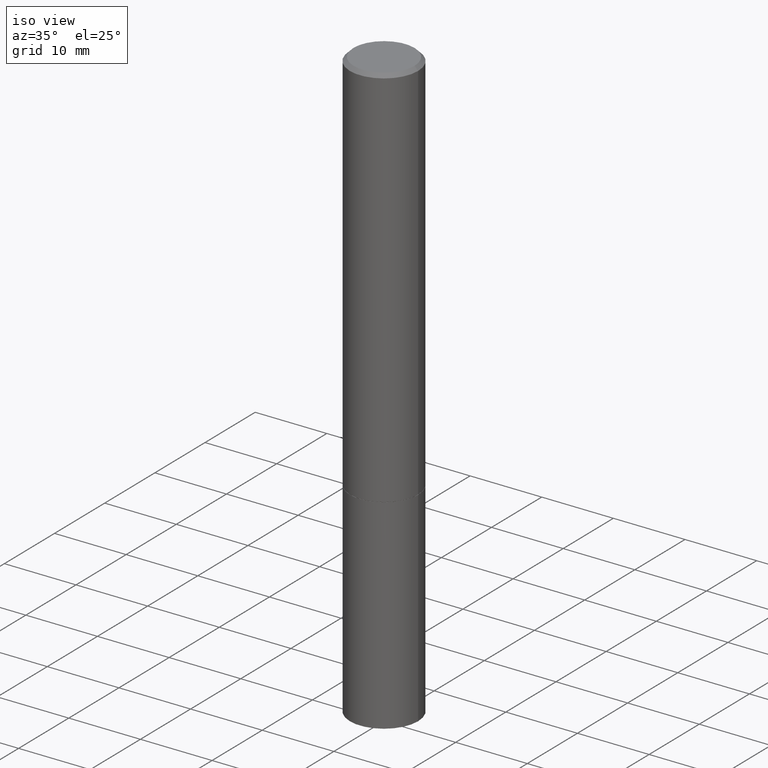
[diagram: clean part render]
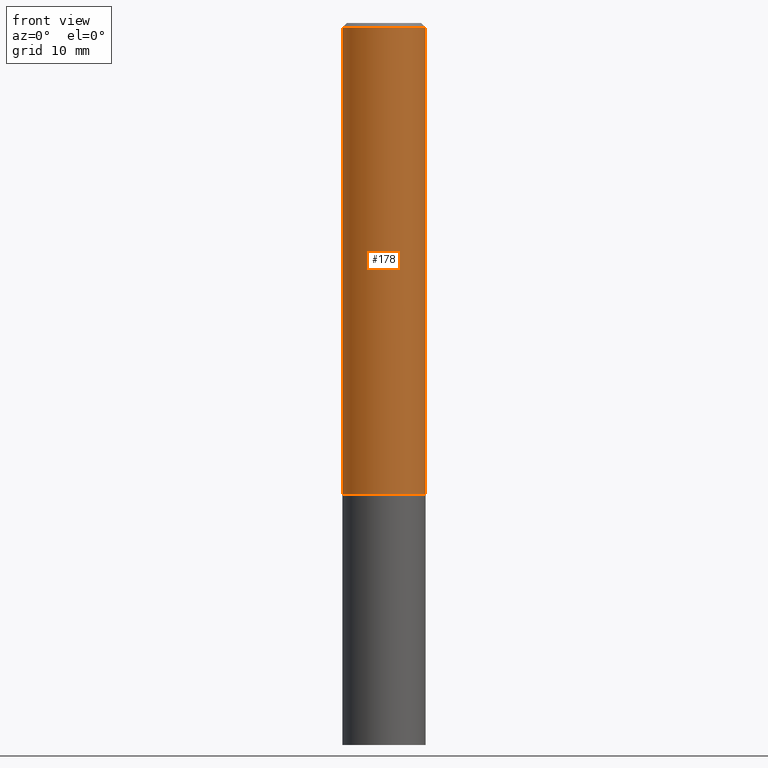
[diagram: tour spotlight — one face highlighted and labeled with its STEP entity id]
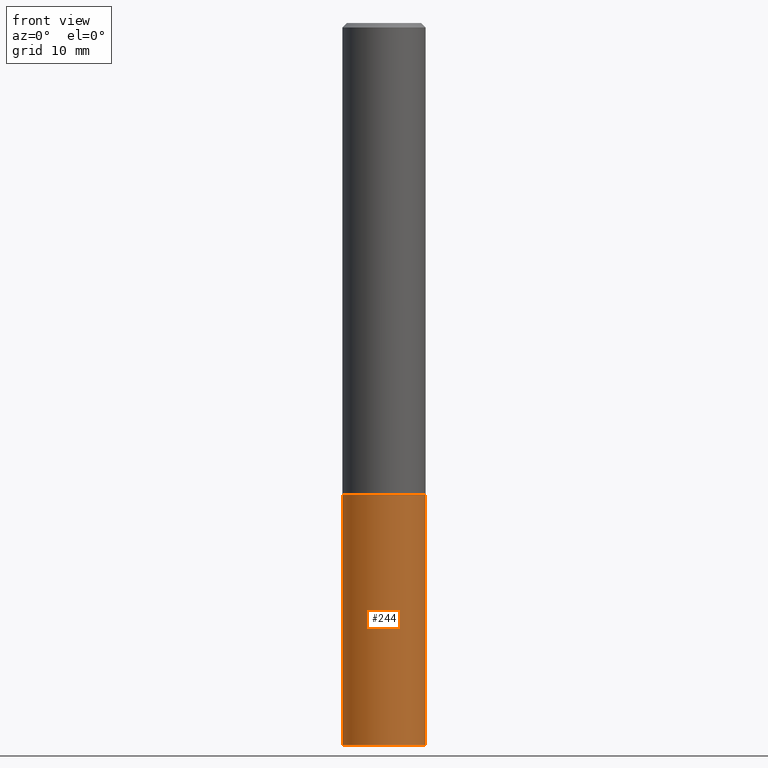
[diagram: tour spotlight — one face highlighted and labeled with its STEP entity id]
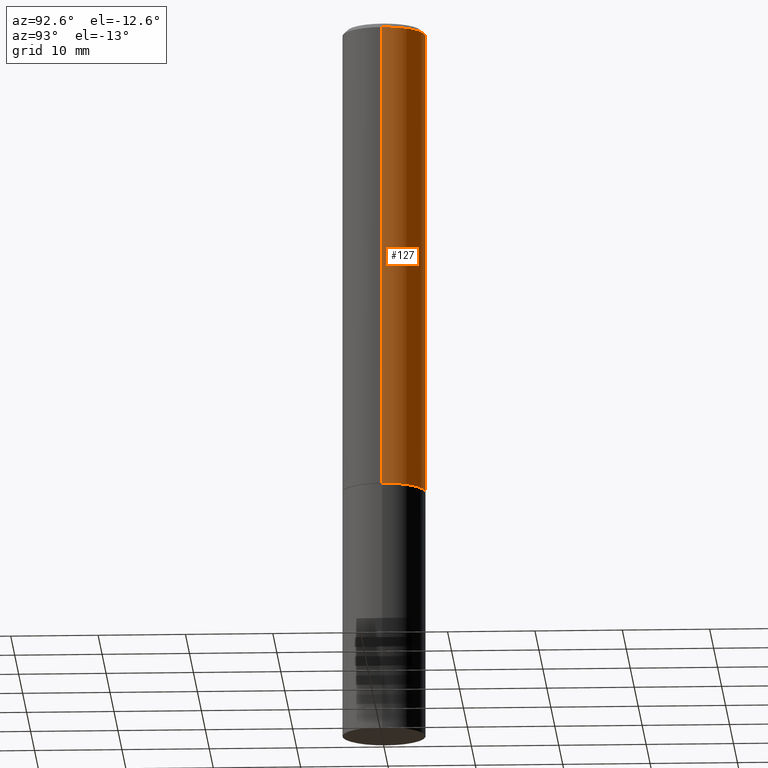
[diagram: tour spotlight — one face highlighted and labeled with its STEP entity id]
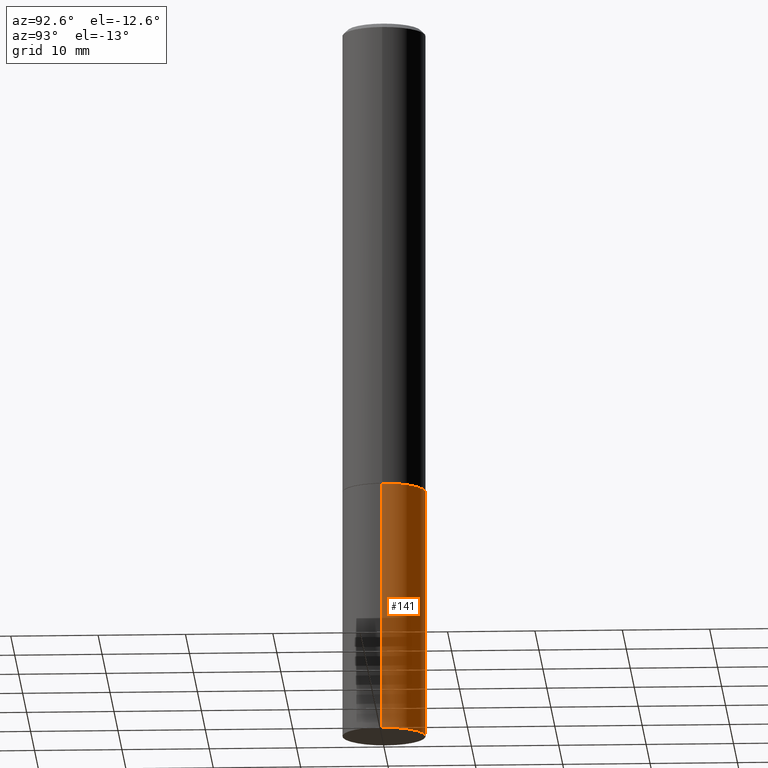
[diagram: tour spotlight — one face highlighted and labeled with its STEP entity id]
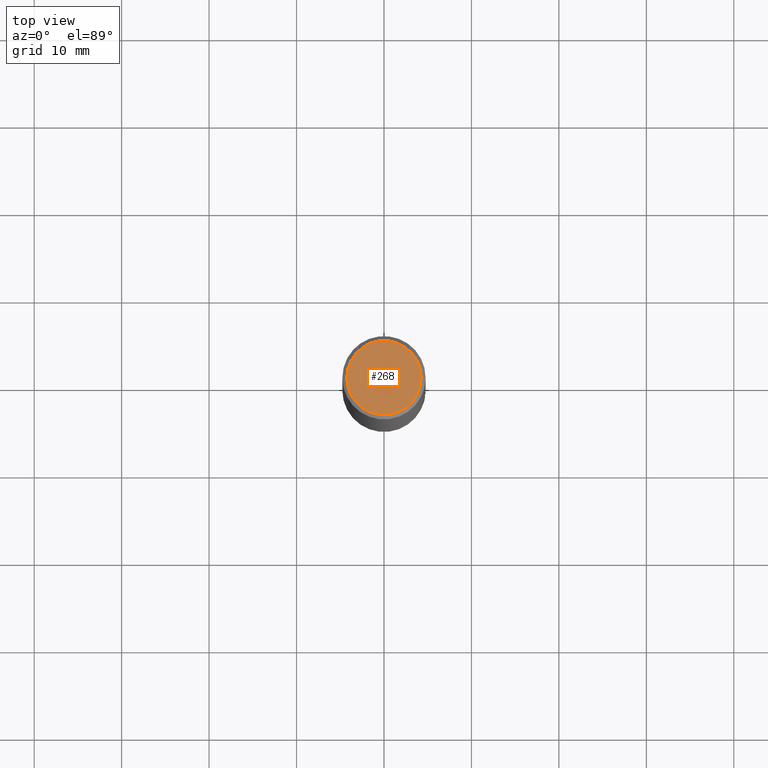
[diagram: tour spotlight — one face highlighted and labeled with its STEP entity id]
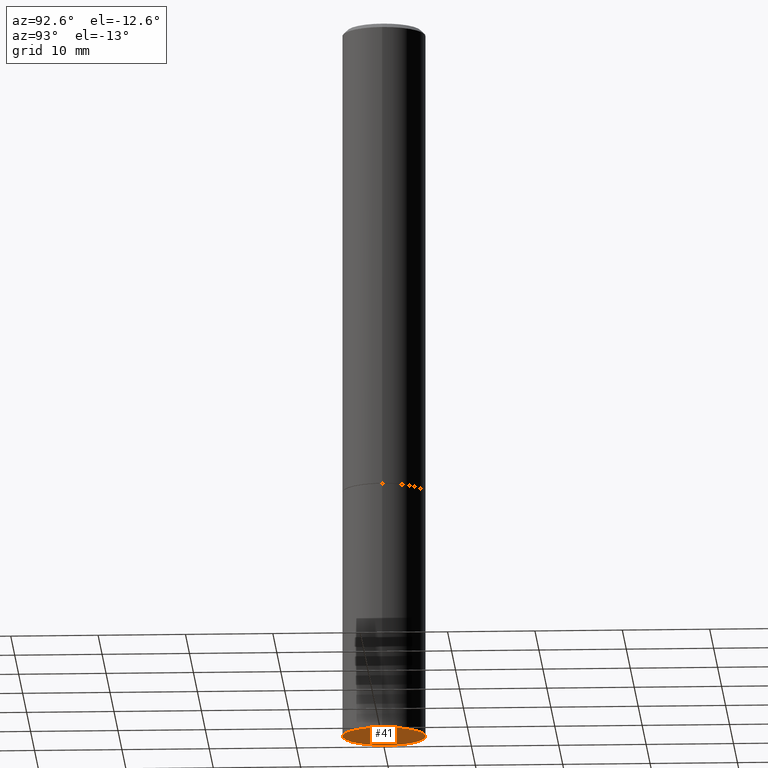
[diagram: tour spotlight — one face highlighted and labeled with its STEP entity id]
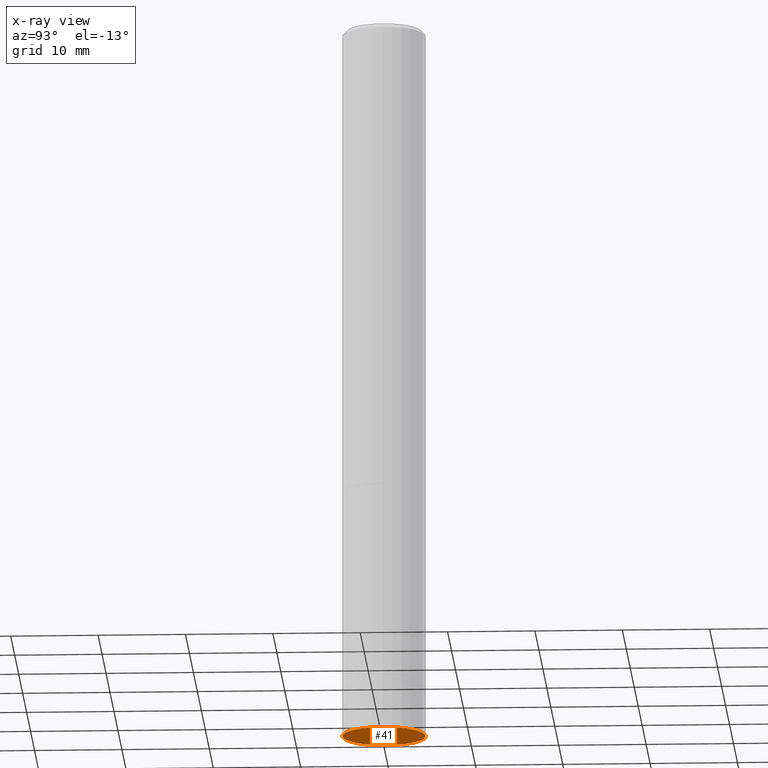
[diagram: x-ray of the same camera — body ghosted, this tour face saturated]
A machine part: a face-by-face anatomy tour. The part has 12 B-rep faces; the first image is the clean iso view, then the 6 largest visible faces are spotlighted one at a time (largest first), each with its STEP entity span.

Face 1 — front view, entity #178. In plain terms, the highlighted cylindrical surface (partial cylindrical patch) has radius 4.7625 mm, axis along (-0, 0, 1).
Definition (entity closure, byte-faithful):
#5 = CARTESIAN_POINT ( 'NONE',  ( 5.194175744337229665E-29, -7.415906363702840616E-15, -2.123999999999999666 ) ) ;
#15 = CARTESIAN_POINT ( 'NONE',  ( -0.1875000000000000278, -2.410600365689662531E-15, -2.123999999999999666 ) ) ;
#17 = CARTESIAN_POINT ( 'NONE',  ( -0.1874999999999997502, 1.239475875289309935E-15, -0.02000000000000004205 ) ) ;
#29 = DIRECTION ( 'NONE',  ( -2.445468806185136597E-29, 3.491481338843145583E-15, 1.000000000000000000 ) ) ;
#30 = VERTEX_POINT ( 'NONE', #15 ) ;
#50 = CARTESIAN_POINT ( 'NONE',  ( 0.1874999999999997502, -1.356173001359023494E-15, -0.02000000000000004205 ) ) ;
#61 = DIRECTION ( 'NONE',  ( -2.445468806185136877E-29, 3.491481338843145188E-15, 1.000000000000000000 ) ) ;
#62 = DIRECTION ( 'NONE',  ( -2.445468806185136597E-29, 3.491481338843145583E-15, 1.000000000000000000 ) ) ;
#63 = EDGE_CURVE ( 'NONE', #30, #299, #355, .T. ) ;
#72 = VECTOR ( 'NONE', #61, 39.37007874015748143 ) ;
#87 = VECTOR ( 'NONE', #232, 39.37007874015748143 ) ;
#98 = AXIS2_PLACEMENT_3D ( 'NONE', #196, #318, #119 ) ;
#100 = EDGE_CURVE ( 'NONE', #299, #277, #147, .T. ) ;
#102 = ORIENTED_EDGE ( 'NONE', *, *, #63, .T. ) ;
#104 = ORIENTED_EDGE ( 'NONE', *, *, #117, .F. ) ;
#117 = EDGE_CURVE ( 'NONE', #30, #273, #203, .T. ) ;
#119 = DIRECTION ( 'NONE',  ( 1.000000000000000000, -6.982962677686265133E-15, 0.000000000000000000 ) ) ;
#132 = EDGE_CURVE ( 'NONE', #273, #277, #252, .T. ) ;
#147 = LINE ( 'NONE', #173, #72 ) ;
#148 = DIRECTION ( 'NONE',  ( 1.000000000000000000, -6.982962677686265922E-15, 4.876176775795935793E-29 ) ) ;
#149 = EDGE_LOOP ( 'NONE', ( #104, #102, #179, #165 ) ) ;
#165 = ORIENTED_EDGE ( 'NONE', *, *, #132, .F. ) ;
#173 = CARTESIAN_POINT ( 'NONE',  ( 0.1874999999999998890, -1.309305502066174022E-15, 9.142831454617374006E-30 ) ) ;
#178 = ADVANCED_FACE ( 'NONE', ( #224 ), #289, .T. ) ;
#179 = ORIENTED_EDGE ( 'NONE', *, *, #100, .T. ) ;
#196 = CARTESIAN_POINT ( 'NONE',  ( 4.890937612370283668E-31, -6.982962677686305168E-17, -0.02000000000000004205 ) ) ;
#203 = LINE ( 'NONE', #315, #87 ) ;
#224 = FACE_OUTER_BOUND ( 'NONE', #149, .T. ) ;
#225 = CARTESIAN_POINT ( 'NONE',  ( 0.1875000000000000278, -8.725211865769015625E-15, -2.123999999999999666 ) ) ;
#232 = DIRECTION ( 'NONE',  ( -2.445468806185136877E-29, 3.491481338843145188E-15, 1.000000000000000000 ) ) ;
#252 = CIRCLE ( 'NONE', #98, 0.1874999999999997502 ) ;
#273 = VERTEX_POINT ( 'NONE', #17 ) ;
#277 = VERTEX_POINT ( 'NONE', #50 ) ;
#285 = AXIS2_PLACEMENT_3D ( 'NONE', #5, #62, #340 ) ;
#288 = CARTESIAN_POINT ( 'NONE',  ( 0.000000000000000000, 0.000000000000000000, 0.000000000000000000 ) ) ;
#289 = CYLINDRICAL_SURFACE ( 'NONE', #363, 0.1874999999999998890 ) ;
#299 = VERTEX_POINT ( 'NONE', #225 ) ;
#315 = CARTESIAN_POINT ( 'NONE',  ( -0.1874999999999998890, 1.332267629550187060E-15, -9.223003294227942385E-30 ) ) ;
#318 = DIRECTION ( 'NONE',  ( -2.445468806185136597E-29, 3.491481338843145583E-15, 1.000000000000000000 ) ) ;
#340 = DIRECTION ( 'NONE',  ( 1.000000000000000000, -6.982962677686266711E-15, 0.000000000000000000 ) ) ;
#355 = CIRCLE ( 'NONE', #285, 0.1875000000000000278 ) ;
#363 = AXIS2_PLACEMENT_3D ( 'NONE', #288, #29, #148 ) ;

Face 2 — front view, entity #244. In plain terms, the highlighted cylindrical surface (partial cylindrical patch) has radius 4.7625 mm, axis along (-0, 0, 1).
Definition (entity closure, byte-faithful):
#25 = CARTESIAN_POINT ( 'NONE',  ( 0.1875000000000000278, -1.309305502066175008E-15, 9.142831454617381013E-30 ) ) ;
#28 = EDGE_CURVE ( 'NONE', #71, #47, #136, .T. ) ;
#39 = FACE_OUTER_BOUND ( 'NONE', #245, .T. ) ;
#42 = DIRECTION ( 'NONE',  ( -2.445468806185136877E-29, 3.491481338843145188E-15, 1.000000000000000000 ) ) ;
#47 = VERTEX_POINT ( 'NONE', #257 ) ;
#53 = VECTOR ( 'NONE', #42, 39.37007874015748143 ) ;
#71 = VERTEX_POINT ( 'NONE', #208 ) ;
#78 = CARTESIAN_POINT ( 'NONE',  ( 5.196621213143415268E-29, -7.419397845041683624E-15, -2.125000000000000000 ) ) ;
#89 = EDGE_CURVE ( 'NONE', #105, #357, #180, .T. ) ;
#105 = VERTEX_POINT ( 'NONE', #335 ) ;
#109 = CIRCLE ( 'NONE', #212, 0.1875000000000000278 ) ;
#111 = DIRECTION ( 'NONE',  ( -2.445468806185136597E-29, 3.491481338843145583E-15, 1.000000000000000000 ) ) ;
#115 = VECTOR ( 'NONE', #120, 39.37007874015748143 ) ;
#120 = DIRECTION ( 'NONE',  ( -2.445468806185136877E-29, 3.491481338843145188E-15, 1.000000000000000000 ) ) ;
#136 = LINE ( 'NONE', #359, #53 ) ;
#137 = DIRECTION ( 'NONE',  ( 1.000000000000000000, -6.982962677686261189E-15, 0.000000000000000000 ) ) ;
#138 = ORIENTED_EDGE ( 'NONE', *, *, #28, .F. ) ;
#139 = CARTESIAN_POINT ( 'NONE',  ( 0.1875000000000000278, -8.728703347107858632E-15, -2.125000000000000000 ) ) ;
#142 = DIRECTION ( 'NONE',  ( 1.000000000000000000, -6.982962677686266711E-15, 0.000000000000000000 ) ) ;
#161 = ORIENTED_EDGE ( 'NONE', *, *, #274, .T. ) ;
#166 = DIRECTION ( 'NONE',  ( 1.000000000000000000, -6.982962677686265922E-15, 4.876176775795935793E-29 ) ) ;
#169 = CARTESIAN_POINT ( 'NONE',  ( 7.947773620101693940E-29, -1.134731435124022443E-14, -3.250000000000000000 ) ) ;
#180 = LINE ( 'NONE', #25, #115 ) ;
#208 = CARTESIAN_POINT ( 'NONE',  ( -0.1875000000000000278, -8.051088468590765387E-15, -3.250000000000000000 ) ) ;
#212 = AXIS2_PLACEMENT_3D ( 'NONE', #78, #280, #142 ) ;
#218 = ORIENTED_EDGE ( 'NONE', *, *, #361, .F. ) ;
#228 = CIRCLE ( 'NONE', #242, 0.1875000000000000278 ) ;
#242 = AXIS2_PLACEMENT_3D ( 'NONE', #169, #111, #137 ) ;
#244 = ADVANCED_FACE ( 'NONE', ( #39 ), #270, .T. ) ;
#245 = EDGE_LOOP ( 'NONE', ( #138, #161, #360, #218 ) ) ;
#247 = CARTESIAN_POINT ( 'NONE',  ( 0.000000000000000000, 0.000000000000000000, 0.000000000000000000 ) ) ;
#257 = CARTESIAN_POINT ( 'NONE',  ( -0.1875000000000000278, -8.051088468590765387E-15, -2.125000000000000000 ) ) ;
#270 = CYLINDRICAL_SURFACE ( 'NONE', #324, 0.1875000000000000278 ) ;
#274 = EDGE_CURVE ( 'NONE', #71, #105, #228, .T. ) ;
#280 = DIRECTION ( 'NONE',  ( -2.445468806185136597E-29, 3.491481338843145583E-15, 1.000000000000000000 ) ) ;
#324 = AXIS2_PLACEMENT_3D ( 'NONE', #247, #362, #166 ) ;
#335 = CARTESIAN_POINT ( 'NONE',  ( 0.1875000000000000278, -1.265661985330639786E-14, -3.250000000000000000 ) ) ;
#357 = VERTEX_POINT ( 'NONE', #139 ) ;
#359 = CARTESIAN_POINT ( 'NONE',  ( -0.1875000000000000278, 1.332267629550188046E-15, -9.223003294227947991E-30 ) ) ;
#360 = ORIENTED_EDGE ( 'NONE', *, *, #89, .T. ) ;
#361 = EDGE_CURVE ( 'NONE', #47, #357, #109, .T. ) ;
#362 = DIRECTION ( 'NONE',  ( -2.445468806185136597E-29, 3.491481338843145583E-15, 1.000000000000000000 ) ) ;

Face 3 — auxiliary view, entity #127. In plain terms, the highlighted cylindrical surface (partial cylindrical patch) has radius 4.7625 mm, axis along (-0, 0, 1).
Definition (entity closure, byte-faithful):
#7 = CARTESIAN_POINT ( 'NONE',  ( 5.194175744337229665E-29, -7.415906363702840616E-15, -2.123999999999999666 ) ) ;
#9 = AXIS2_PLACEMENT_3D ( 'NONE', #293, #237, #152 ) ;
#13 = ORIENTED_EDGE ( 'NONE', *, *, #46, .T. ) ;
#15 = CARTESIAN_POINT ( 'NONE',  ( -0.1875000000000000278, -2.410600365689662531E-15, -2.123999999999999666 ) ) ;
#17 = CARTESIAN_POINT ( 'NONE',  ( -0.1874999999999997502, 1.239475875289309935E-15, -0.02000000000000004205 ) ) ;
#30 = VERTEX_POINT ( 'NONE', #15 ) ;
#46 = EDGE_CURVE ( 'NONE', #299, #30, #227, .T. ) ;
#50 = CARTESIAN_POINT ( 'NONE',  ( 0.1874999999999997502, -1.356173001359023494E-15, -0.02000000000000004205 ) ) ;
#61 = DIRECTION ( 'NONE',  ( -2.445468806185136877E-29, 3.491481338843145188E-15, 1.000000000000000000 ) ) ;
#64 = DIRECTION ( 'NONE',  ( -2.445468806185136597E-29, 3.491481338843145583E-15, 1.000000000000000000 ) ) ;
#69 = DIRECTION ( 'NONE',  ( 1.000000000000000000, -6.982962677686265133E-15, 0.000000000000000000 ) ) ;
#72 = VECTOR ( 'NONE', #61, 39.37007874015748143 ) ;
#87 = VECTOR ( 'NONE', #232, 39.37007874015748143 ) ;
#100 = EDGE_CURVE ( 'NONE', #299, #277, #147, .T. ) ;
#117 = EDGE_CURVE ( 'NONE', #30, #273, #203, .T. ) ;
#121 = AXIS2_PLACEMENT_3D ( 'NONE', #352, #296, #69 ) ;
#127 = ADVANCED_FACE ( 'NONE', ( #182 ), #210, .T. ) ;
#134 = CIRCLE ( 'NONE', #121, 0.1874999999999997502 ) ;
#147 = LINE ( 'NONE', #173, #72 ) ;
#152 = DIRECTION ( 'NONE',  ( 1.000000000000000000, -6.982962677686265922E-15, 4.876176775795935793E-29 ) ) ;
#173 = CARTESIAN_POINT ( 'NONE',  ( 0.1874999999999998890, -1.309305502066174022E-15, 9.142831454617374006E-30 ) ) ;
#182 = FACE_OUTER_BOUND ( 'NONE', #250, .T. ) ;
#191 = AXIS2_PLACEMENT_3D ( 'NONE', #7, #64, #320 ) ;
#193 = EDGE_CURVE ( 'NONE', #277, #273, #134, .T. ) ;
#203 = LINE ( 'NONE', #315, #87 ) ;
#210 = CYLINDRICAL_SURFACE ( 'NONE', #9, 0.1874999999999998890 ) ;
#225 = CARTESIAN_POINT ( 'NONE',  ( 0.1875000000000000278, -8.725211865769015625E-15, -2.123999999999999666 ) ) ;
#227 = CIRCLE ( 'NONE', #191, 0.1875000000000000278 ) ;
#232 = DIRECTION ( 'NONE',  ( -2.445468806185136877E-29, 3.491481338843145188E-15, 1.000000000000000000 ) ) ;
#237 = DIRECTION ( 'NONE',  ( -2.445468806185136597E-29, 3.491481338843145583E-15, 1.000000000000000000 ) ) ;
#250 = EDGE_LOOP ( 'NONE', ( #13, #300, #327, #349 ) ) ;
#273 = VERTEX_POINT ( 'NONE', #17 ) ;
#277 = VERTEX_POINT ( 'NONE', #50 ) ;
#293 = CARTESIAN_POINT ( 'NONE',  ( 0.000000000000000000, 0.000000000000000000, 0.000000000000000000 ) ) ;
#296 = DIRECTION ( 'NONE',  ( -2.445468806185136597E-29, 3.491481338843145583E-15, 1.000000000000000000 ) ) ;
#299 = VERTEX_POINT ( 'NONE', #225 ) ;
#300 = ORIENTED_EDGE ( 'NONE', *, *, #117, .T. ) ;
#315 = CARTESIAN_POINT ( 'NONE',  ( -0.1874999999999998890, 1.332267629550187060E-15, -9.223003294227942385E-30 ) ) ;
#320 = DIRECTION ( 'NONE',  ( 1.000000000000000000, -6.982962677686266711E-15, 0.000000000000000000 ) ) ;
#327 = ORIENTED_EDGE ( 'NONE', *, *, #193, .F. ) ;
#349 = ORIENTED_EDGE ( 'NONE', *, *, #100, .F. ) ;
#352 = CARTESIAN_POINT ( 'NONE',  ( 4.890937612370283668E-31, -6.982962677686305168E-17, -0.02000000000000004205 ) ) ;

Face 4 — auxiliary view, entity #141. In plain terms, the highlighted cylindrical surface (partial cylindrical patch) has radius 4.7625 mm, axis along (-0, 0, 1).
Definition (entity closure, byte-faithful):
#23 = AXIS2_PLACEMENT_3D ( 'NONE', #86, #223, #304 ) ;
#25 = CARTESIAN_POINT ( 'NONE',  ( 0.1875000000000000278, -1.309305502066175008E-15, 9.142831454617381013E-30 ) ) ;
#26 = CYLINDRICAL_SURFACE ( 'NONE', #294, 0.1875000000000000278 ) ;
#28 = EDGE_CURVE ( 'NONE', #71, #47, #136, .T. ) ;
#42 = DIRECTION ( 'NONE',  ( -2.445468806185136877E-29, 3.491481338843145188E-15, 1.000000000000000000 ) ) ;
#43 = ORIENTED_EDGE ( 'NONE', *, *, #351, .T. ) ;
#47 = VERTEX_POINT ( 'NONE', #257 ) ;
#49 = ORIENTED_EDGE ( 'NONE', *, *, #167, .F. ) ;
#53 = VECTOR ( 'NONE', #42, 39.37007874015748143 ) ;
#57 = CARTESIAN_POINT ( 'NONE',  ( 5.196621213143415268E-29, -7.419397845041683624E-15, -2.125000000000000000 ) ) ;
#59 = AXIS2_PLACEMENT_3D ( 'NONE', #57, #260, #110 ) ;
#71 = VERTEX_POINT ( 'NONE', #208 ) ;
#86 = CARTESIAN_POINT ( 'NONE',  ( 7.947773620101693940E-29, -1.134731435124022443E-14, -3.250000000000000000 ) ) ;
#89 = EDGE_CURVE ( 'NONE', #105, #357, #180, .T. ) ;
#105 = VERTEX_POINT ( 'NONE', #335 ) ;
#110 = DIRECTION ( 'NONE',  ( 1.000000000000000000, -6.982962677686266711E-15, 0.000000000000000000 ) ) ;
#115 = VECTOR ( 'NONE', #120, 39.37007874015748143 ) ;
#120 = DIRECTION ( 'NONE',  ( -2.445468806185136877E-29, 3.491481338843145188E-15, 1.000000000000000000 ) ) ;
#128 = CIRCLE ( 'NONE', #23, 0.1875000000000000278 ) ;
#136 = LINE ( 'NONE', #359, #53 ) ;
#139 = CARTESIAN_POINT ( 'NONE',  ( 0.1875000000000000278, -8.728703347107858632E-15, -2.125000000000000000 ) ) ;
#141 = ADVANCED_FACE ( 'NONE', ( #145 ), #26, .T. ) ;
#145 = FACE_OUTER_BOUND ( 'NONE', #246, .T. ) ;
#167 = EDGE_CURVE ( 'NONE', #357, #47, #222, .T. ) ;
#180 = LINE ( 'NONE', #25, #115 ) ;
#208 = CARTESIAN_POINT ( 'NONE',  ( -0.1875000000000000278, -8.051088468590765387E-15, -3.250000000000000000 ) ) ;
#216 = ORIENTED_EDGE ( 'NONE', *, *, #28, .T. ) ;
#222 = CIRCLE ( 'NONE', #59, 0.1875000000000000278 ) ;
#223 = DIRECTION ( 'NONE',  ( -2.445468806185136597E-29, 3.491481338843145583E-15, 1.000000000000000000 ) ) ;
#246 = EDGE_LOOP ( 'NONE', ( #43, #216, #49, #303 ) ) ;
#257 = CARTESIAN_POINT ( 'NONE',  ( -0.1875000000000000278, -8.051088468590765387E-15, -2.125000000000000000 ) ) ;
#260 = DIRECTION ( 'NONE',  ( -2.445468806185136597E-29, 3.491481338843145583E-15, 1.000000000000000000 ) ) ;
#264 = CARTESIAN_POINT ( 'NONE',  ( 0.000000000000000000, 0.000000000000000000, 0.000000000000000000 ) ) ;
#294 = AXIS2_PLACEMENT_3D ( 'NONE', #264, #348, #342 ) ;
#303 = ORIENTED_EDGE ( 'NONE', *, *, #89, .F. ) ;
#304 = DIRECTION ( 'NONE',  ( 1.000000000000000000, -6.982962677686261189E-15, 0.000000000000000000 ) ) ;
#335 = CARTESIAN_POINT ( 'NONE',  ( 0.1875000000000000278, -1.265661985330639786E-14, -3.250000000000000000 ) ) ;
#342 = DIRECTION ( 'NONE',  ( 1.000000000000000000, -6.982962677686265922E-15, 4.876176775795935793E-29 ) ) ;
#348 = DIRECTION ( 'NONE',  ( -2.445468806185136597E-29, 3.491481338843145583E-15, 1.000000000000000000 ) ) ;
#351 = EDGE_CURVE ( 'NONE', #105, #71, #128, .T. ) ;
#357 = VERTEX_POINT ( 'NONE', #139 ) ;
#359 = CARTESIAN_POINT ( 'NONE',  ( -0.1875000000000000278, 1.332267629550188046E-15, -9.223003294227947991E-30 ) ) ;

Face 5 — top view, entity #268. In plain terms, the highlighted planar face has unit normal (0, -0, -1).
Definition (entity closure, byte-faithful):
#3 = DIRECTION ( 'NONE',  ( -2.445468806185136597E-29, 3.491481338843145583E-15, 1.000000000000000000 ) ) ;
#19 = DIRECTION ( 'NONE',  ( 1.000000000000000000, -6.982962677686265922E-15, 4.875936752492899929E-29 ) ) ;
#32 = DIRECTION ( 'NONE',  ( 1.000000000000000000, -6.982962677686265922E-15, 4.875936752492899929E-29 ) ) ;
#52 = CARTESIAN_POINT ( 'NONE',  ( 1.169646248512447820E-15, 0.1674999999999997602, -5.826888680111757675E-16 ) ) ;
#74 = VERTEX_POINT ( 'NONE', #170 ) ;
#82 = FACE_OUTER_BOUND ( 'NONE', #354, .T. ) ;
#84 = CARTESIAN_POINT ( 'NONE',  ( -1.043851414335219820E-46, 1.490343170380447200E-32, 4.268512490100411279E-18 ) ) ;
#106 = DIRECTION ( 'NONE',  ( -1.000000000000000000, 6.982962677686265922E-15, -4.876176775795935793E-29 ) ) ;
#125 = EDGE_CURVE ( 'NONE', #74, #276, #198, .T. ) ;
#154 = ORIENTED_EDGE ( 'NONE', *, *, #308, .T. ) ;
#162 = AXIS2_PLACEMENT_3D ( 'NONE', #291, #3, #32 ) ;
#170 = CARTESIAN_POINT ( 'NONE',  ( -0.1674999999999997602, 1.204561061900878878E-15, 4.268512490092109750E-18 ) ) ;
#195 = DIRECTION ( 'NONE',  ( 2.438088387897960049E-29, -3.491481338843145188E-15, -1.000000000000000000 ) ) ;
#198 = CIRCLE ( 'NONE', #162, 0.1674999999999997602 ) ;
#255 = PLANE ( 'NONE',  #332 ) ;
#267 = CIRCLE ( 'NONE', #356, 0.1674999999999997602 ) ;
#268 = ADVANCED_FACE ( 'NONE', ( #82 ), #255, .F. ) ;
#276 = VERTEX_POINT ( 'NONE', #307 ) ;
#291 = CARTESIAN_POINT ( 'NONE',  ( -1.043851414335219820E-46, 1.490343170380447200E-32, 4.268512490100411279E-18 ) ) ;
#307 = CARTESIAN_POINT ( 'NONE',  ( 0.1674999999999997602, -1.252653207992876711E-15, 4.268512490108880748E-18 ) ) ;
#308 = EDGE_CURVE ( 'NONE', #276, #74, #267, .T. ) ;
#332 = AXIS2_PLACEMENT_3D ( 'NONE', #52, #195, #106 ) ;
#336 = DIRECTION ( 'NONE',  ( -2.445468806185136597E-29, 3.491481338843145583E-15, 1.000000000000000000 ) ) ;
#353 = ORIENTED_EDGE ( 'NONE', *, *, #125, .T. ) ;
#354 = EDGE_LOOP ( 'NONE', ( #353, #154 ) ) ;
#356 = AXIS2_PLACEMENT_3D ( 'NONE', #84, #336, #19 ) ;

Face 6 — auxiliary view, entity #41. An x-ray twin of the same camera follows (body ghosted, this face saturated) — the face is partly hidden behind the body. In plain terms, the highlighted planar face has unit normal (0, -0, -1).
Definition (entity closure, byte-faithful):
#20 = ORIENTED_EDGE ( 'NONE', *, *, #351, .F. ) ;
#22 = AXIS2_PLACEMENT_3D ( 'NONE', #83, #118, #91 ) ;
#23 = AXIS2_PLACEMENT_3D ( 'NONE', #86, #223, #304 ) ;
#41 = ADVANCED_FACE ( 'NONE', ( #309 ), #345, .T. ) ;
#71 = VERTEX_POINT ( 'NONE', #208 ) ;
#83 = CARTESIAN_POINT ( 'NONE',  ( 1.309305502066254683E-15, 0.1874999999999886757, -3.250000000000000444 ) ) ;
#86 = CARTESIAN_POINT ( 'NONE',  ( 7.947773620101693940E-29, -1.134731435124022443E-14, -3.250000000000000000 ) ) ;
#91 = DIRECTION ( 'NONE',  ( -1.000000000000000000, 6.982962677686265922E-15, -4.876176775795935793E-29 ) ) ;
#105 = VERTEX_POINT ( 'NONE', #335 ) ;
#111 = DIRECTION ( 'NONE',  ( -2.445468806185136597E-29, 3.491481338843145583E-15, 1.000000000000000000 ) ) ;
#118 = DIRECTION ( 'NONE',  ( 2.438088387897960049E-29, -3.491481338843145188E-15, -1.000000000000000000 ) ) ;
#128 = CIRCLE ( 'NONE', #23, 0.1875000000000000278 ) ;
#137 = DIRECTION ( 'NONE',  ( 1.000000000000000000, -6.982962677686261189E-15, 0.000000000000000000 ) ) ;
#157 = ORIENTED_EDGE ( 'NONE', *, *, #274, .F. ) ;
#169 = CARTESIAN_POINT ( 'NONE',  ( 7.947773620101693940E-29, -1.134731435124022443E-14, -3.250000000000000000 ) ) ;
#208 = CARTESIAN_POINT ( 'NONE',  ( -0.1875000000000000278, -8.051088468590765387E-15, -3.250000000000000000 ) ) ;
#223 = DIRECTION ( 'NONE',  ( -2.445468806185136597E-29, 3.491481338843145583E-15, 1.000000000000000000 ) ) ;
#228 = CIRCLE ( 'NONE', #242, 0.1875000000000000278 ) ;
#242 = AXIS2_PLACEMENT_3D ( 'NONE', #169, #111, #137 ) ;
#274 = EDGE_CURVE ( 'NONE', #71, #105, #228, .T. ) ;
#304 = DIRECTION ( 'NONE',  ( 1.000000000000000000, -6.982962677686261189E-15, 0.000000000000000000 ) ) ;
#309 = FACE_OUTER_BOUND ( 'NONE', #326, .T. ) ;
#326 = EDGE_LOOP ( 'NONE', ( #20, #157 ) ) ;
#335 = CARTESIAN_POINT ( 'NONE',  ( 0.1875000000000000278, -1.265661985330639786E-14, -3.250000000000000000 ) ) ;
#345 = PLANE ( 'NONE',  #22 ) ;
#351 = EDGE_CURVE ( 'NONE', #105, #71, #128, .T. ) ;